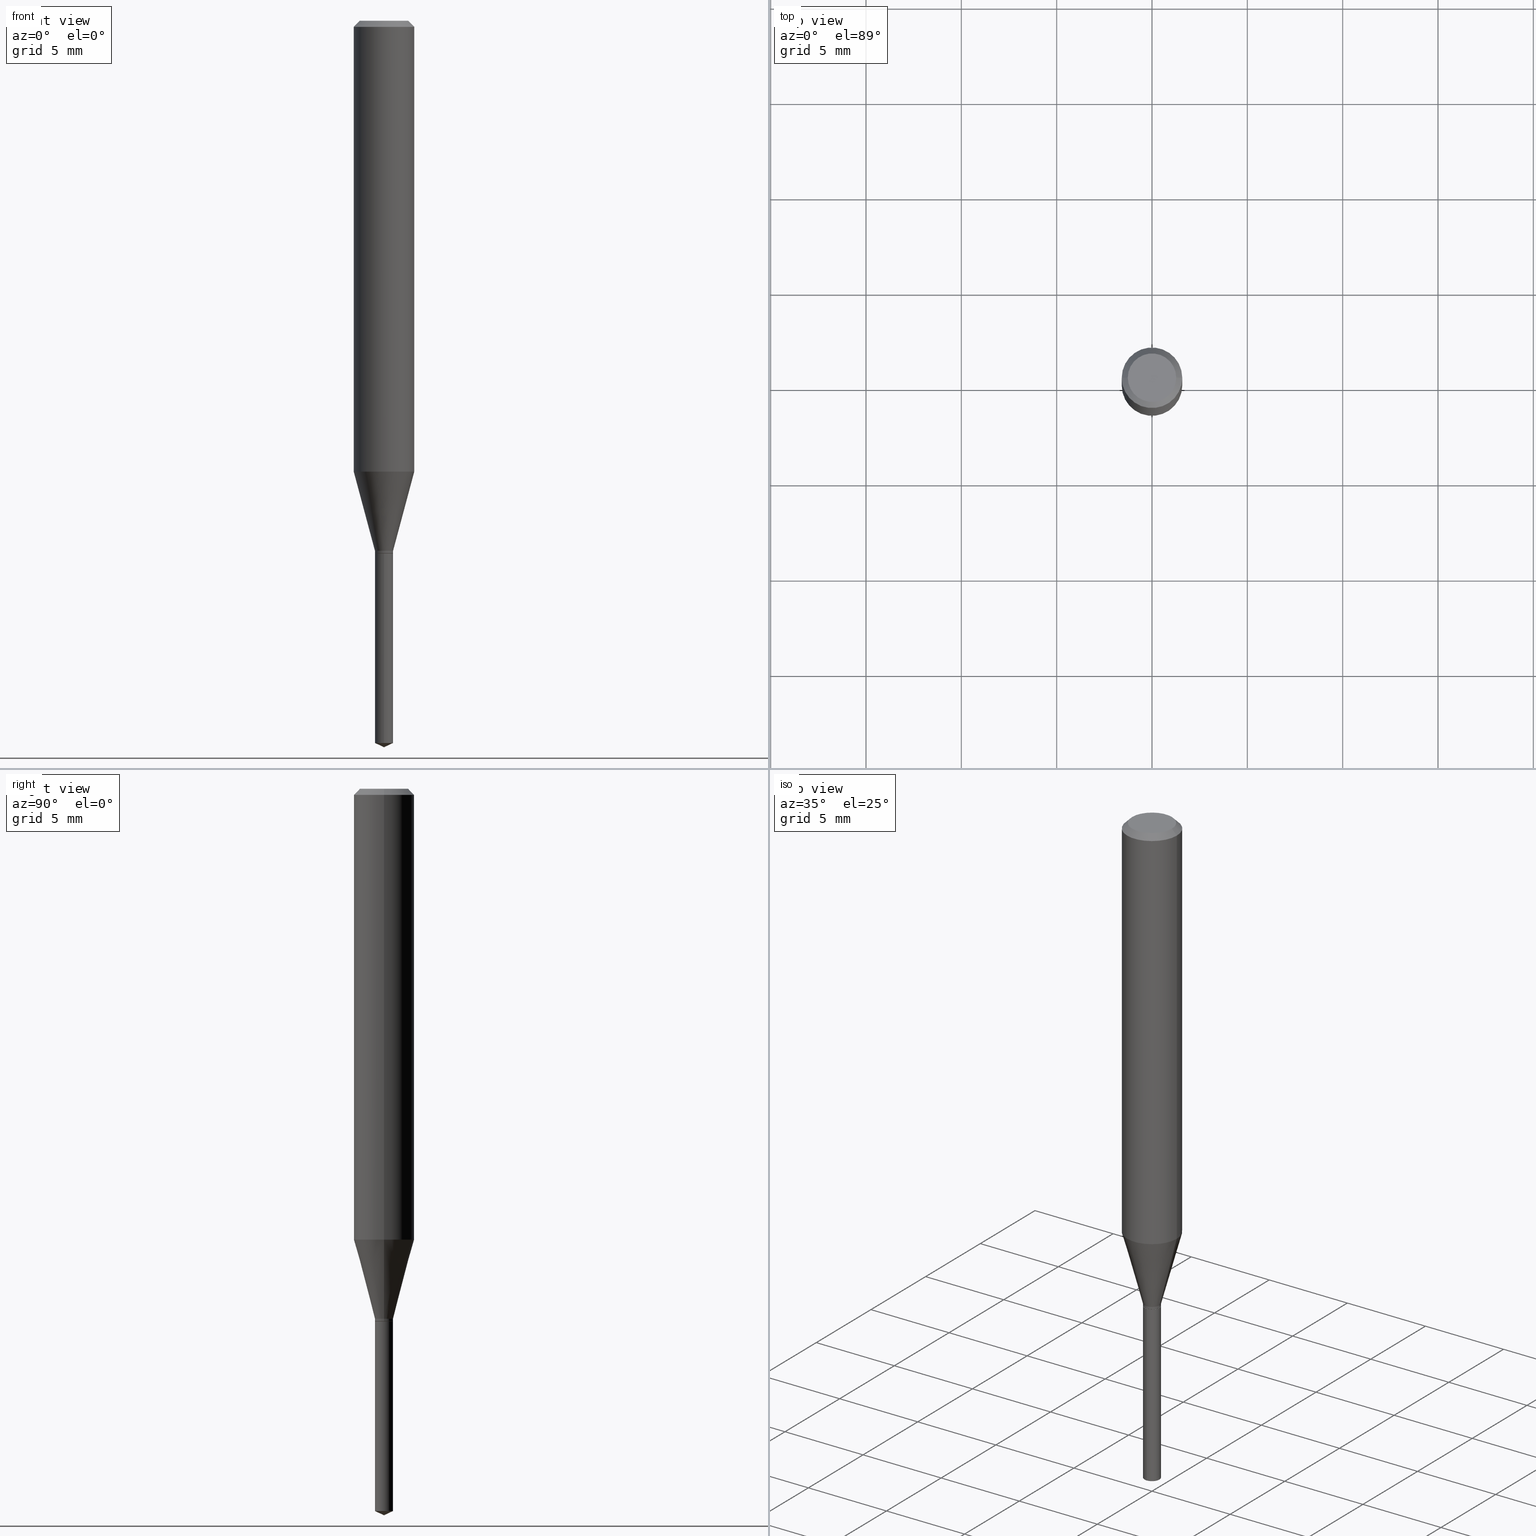
[diagram: canonical four-view strip — front | top / right | iso, engineering-drawing reading convention]
A machine part, canonical four-view strip (front | top / right | iso — engineering-drawing reading convention). The complete STEP part file that produces these views, byte-faithful:
ISO-10303-21;
HEADER;
FILE_DESCRIPTION (( 'STEP AP203' ),
    '1' );
FILE_NAME ('07308.STEP',
    '2024-04-23T20:21:06',
    ( '' ),
    ( '' ),
    'SwSTEP 2.0',
    'SolidWorks 2023',
    '' );
FILE_SCHEMA (( 'CONFIG_CONTROL_DESIGN' ));
ENDSEC;

DATA;
#1 = CLOSED_SHELL ( 'NONE', ( #456, #391, #300, #370, #58, #366, #282, #95, #230, #337, #39, #72 ) ) ;
#2 = CARTESIAN_POINT ( 'NONE',  ( 0.01870000000000000134, -3.951658579302672462E-15, -1.094400000000000039 ) ) ;
#3 = EDGE_CURVE ( 'NONE', #159, #268, #135, .T. ) ;
#4 = EDGE_LOOP ( 'NONE', ( #326, #16, #15, #118 ) ) ;
#5 = CARTESIAN_POINT ( 'NONE',  ( 1.328714915871656395E-16, 0.01869999999999616067, -1.100000000000000089 ) ) ;
#6 = APPROVAL ( #331, 'UNSPECIFIED' ) ;
#7 = DIRECTION ( 'NONE',  ( 1.000000000000000000, -6.982962677686266711E-15, 4.876176775795935232E-29 ) ) ;
#8 = ORIENTED_EDGE ( 'NONE', *, *, #171, .T. ) ;
#9 = LOCAL_TIME ( 16, 21, 6.000000000000000000, #304 ) ;
#10 = CARTESIAN_POINT ( 'NONE',  ( 2.690015686803650369E-29, -3.840629472727460101E-15, -1.100000000000000089 ) ) ;
#11 = PERSON_AND_ORGANIZATION ( #480, #19 ) ;
#12 = DIRECTION ( 'NONE',  ( -2.445468806185136597E-29, 3.491481338843145583E-15, 1.000000000000000000 ) ) ;
#13 = PERSON_AND_ORGANIZATION ( #480, #19 ) ;
#14 = CYLINDRICAL_SURFACE ( 'NONE', #417, 0.06250000000000005551 ) ;
#15 = ORIENTED_EDGE ( 'NONE', *, *, #354, .F. ) ;
#16 = ORIENTED_EDGE ( 'NONE', *, *, #317, .T. ) ;
#17 = DIRECTION ( 'NONE',  ( 0.7071067811865232589, -2.468850131082003836E-15, 0.7071067811865715536 ) ) ;
#18 = AXIS2_PLACEMENT_3D ( 'NONE', #470, #192, #48 ) ;
#19 = ORGANIZATION ( 'UNSPECIFIED', 'UNSPECIFIED', '' ) ;
#20 = LINE ( 'NONE', #129, #184 ) ;
#21 = ORIENTED_EDGE ( 'NONE', *, *, #94, .T. ) ;
#22 = DIRECTION ( 'NONE',  ( 2.438088387897960049E-29, -3.491481338843145188E-15, -1.000000000000000000 ) ) ;
#23 = DESIGN_CONTEXT ( 'detailed design', #46, 'design' ) ;
#24 = ADVANCED_FACE ( 'NONE', ( #26 ), #444, .T. ) ;
#25 = CARTESIAN_POINT ( 'NONE',  ( 0.000000000000000000, 0.000000000000000000, 0.000000000000000000 ) ) ;
#26 = FACE_OUTER_BOUND ( 'NONE', #259, .T. ) ;
#27 =( GEOMETRIC_REPRESENTATION_CONTEXT ( 3 ) GLOBAL_UNCERTAINTY_ASSIGNED_CONTEXT ( ( #154 ) ) GLOBAL_UNIT_ASSIGNED_CONTEXT ( ( #365, #36, #137 ) ) REPRESENTATION_CONTEXT ( 'NONE', 'WORKASPACE' ) );
#28 = LINE ( 'NONE', #357, #459 ) ;
#29 = DIRECTION ( 'NONE',  ( -6.982962677686265922E-15, -1.000000000000000000, 0.000000000000000000 ) ) ;
#30 = FACE_OUTER_BOUND ( 'NONE', #110, .T. ) ;
#31 = ORIENTED_EDGE ( 'NONE', *, *, #302, .F. ) ;
#32 = APPLICATION_PROTOCOL_DEFINITION ( 'international standard', 'config_control_design', 1994, #87 ) ;
#33 = EDGE_CURVE ( 'NONE', #408, #159, #189, .T. ) ;
#34 = AXIS2_PLACEMENT_3D ( 'NONE', #25, #207, #360 ) ;
#35 = AXIS2_PLACEMENT_3D ( 'NONE', #398, #400, #359 ) ;
#36 =( NAMED_UNIT ( * ) PLANE_ANGLE_UNIT ( ) SI_UNIT ( $, .RADIAN. ) );
#37 = PRODUCT_RELATED_PRODUCT_CATEGORY ( 'detail', '', ( #474 ) ) ;
#38 = ORIENTED_EDGE ( 'NONE', *, *, #157, .F. ) ;
#39 = ADVANCED_FACE ( 'NONE', ( #488 ), #225, .F. ) ;
#40 = EDGE_CURVE ( 'NONE', #373, #371, #67, .T. ) ;
#41 = PERSON_AND_ORGANIZATION_ROLE ( 'creator' ) ;
#42 = CIRCLE ( 'NONE', #222, 0.06250000000000009714 ) ;
#43 = CALENDAR_DATE ( 2024, 23, 4 ) ;
#44 = CC_DESIGN_PERSON_AND_ORGANIZATION_ASSIGNMENT ( #152, #425, ( #436 ) ) ;
#45 = CARTESIAN_POINT ( 'NONE',  ( -0.06250000000000000000, 3.927916506198521080E-16, -0.01250000000000008049 ) ) ;
#46 = APPLICATION_CONTEXT ( 'configuration controlled 3d designs of mechanical parts and assemblies' ) ;
#47 = COORDINATED_UNIVERSAL_TIME_OFFSET ( 5, 0, .BEHIND. ) ;
#48 = DIRECTION ( 'NONE',  ( 1.000000000000000000, -6.982962677686266711E-15, 0.000000000000000000 ) ) ;
#49 = CARTESIAN_POINT ( 'NONE',  ( 2.688792952400557567E-29, -3.838883732058038598E-15, -1.099499999999999922 ) ) ;
#50 = DIRECTION ( 'NONE',  ( -2.445468806185136597E-29, 3.491481338843145583E-15, 1.000000000000000000 ) ) ;
#51 = AXIS2_PLACEMENT_3D ( 'NONE', #10, #148, #279 ) ;
#52 = SECURITY_CLASSIFICATION_LEVEL ( 'unclassified' ) ;
#53 = AXIS2_PLACEMENT_3D ( 'NONE', #100, #322, #167 ) ;
#54 = DIRECTION ( 'NONE',  ( 1.000000000000000000, -6.982962677686274599E-15, 0.000000000000000000 ) ) ;
#55 = CALENDAR_DATE ( 2024, 23, 4 ) ;
#56 = DIRECTION ( 'NONE',  ( -2.445468806185136597E-29, 3.491481338843145583E-15, 1.000000000000000000 ) ) ;
#57 = EDGE_LOOP ( 'NONE', ( #175, #90 ) ) ;
#58 = ADVANCED_FACE ( 'NONE', ( #76 ), #335, .T. ) ;
#59 = CARTESIAN_POINT ( 'NONE',  ( 2.676321061489013570E-29, -3.821077177229939261E-15, -1.094400000000000039 ) ) ;
#60 = ORIENTED_EDGE ( 'NONE', *, *, #3, .F. ) ;
#61 = DIRECTION ( 'NONE',  ( 2.445468806185136597E-29, -3.491481338843145583E-15, -1.000000000000000000 ) ) ;
#62 = CARTESIAN_POINT ( 'NONE',  ( 3.668252923656895710E-29, -5.237152723863177100E-15, -1.500000000000000222 ) ) ;
#63 = DIRECTION ( 'NONE',  ( 1.000000000000000000, -6.982962677686265922E-15, 4.875957971899673662E-29 ) ) ;
#64 = CARTESIAN_POINT ( 'NONE',  ( 0.04999999999999999584, -4.077247707424184212E-16, -1.592040838888913461E-18 ) ) ;
#65 = ORIENTED_EDGE ( 'NONE', *, *, #443, .T. ) ;
#66 = CARTESIAN_POINT ( 'NONE',  ( 2.676321061489013570E-29, -3.821077177229939261E-15, -1.094400000000000039 ) ) ;
#67 = CIRCLE ( 'NONE', #404, 0.06250000000000009714 ) ;
#68 = AXIS2_PLACEMENT_3D ( 'NONE', #248, #61, #96 ) ;
#69 = DIRECTION ( 'NONE',  ( -6.982962677686265922E-15, -1.000000000000000000, 0.000000000000000000 ) ) ;
#70 = EDGE_LOOP ( 'NONE', ( #239, #486, #117, #390 ) ) ;
#71 = DIRECTION ( 'NONE',  ( 0.000000000000000000, 0.000000000000000000, 1.000000000000000000 ) ) ;
#72 = ADVANCED_FACE ( 'NONE', ( #305 ), #99, .T. ) ;
#73 = ORIENTED_EDGE ( 'NONE', *, *, #215, .T. ) ;
#74 = APPLICATION_PROTOCOL_DEFINITION ( 'international standard', 'config_control_design', 1994, #46 ) ;
#75 = CIRCLE ( 'NONE', #271, 0.01870000000000000134 ) ;
#76 = FACE_OUTER_BOUND ( 'NONE', #253, .T. ) ;
#77 = AXIS2_PLACEMENT_3D ( 'NONE', #66, #401, #216 ) ;
#78 = ORIENTED_EDGE ( 'NONE', *, *, #146, .F. ) ;
#79 = DIRECTION ( 'NONE',  ( 1.000000000000000000, 0.000000000000000000, 0.000000000000000000 ) ) ;
#80 = DATE_AND_TIME ( #445, #244 ) ;
#81 = CARTESIAN_POINT ( 'NONE',  ( 0.01870000000000000134, -3.951658579302672462E-15, -1.094400000000000039 ) ) ;
#82 = CARTESIAN_POINT ( 'NONE',  ( 2.690015686803650369E-29, -3.840629472727460101E-15, -1.100000000000000089 ) ) ;
#83 = AXIS2_PLACEMENT_3D ( 'NONE', #49, #422, #54 ) ;
#84 = PRODUCT_DEFINITION_FORMATION_WITH_SPECIFIED_SOURCE ( 'ANY', '', #474, .NOT_KNOWN. ) ;
#85 = CARTESIAN_POINT ( 'NONE',  ( -9.260740279983036507E-28, 1.322265303911854087E-13, 37.87007874015748143 ) ) ;
#86 = VERTEX_POINT ( 'NONE', #81 ) ;
#87 = APPLICATION_CONTEXT ( 'configuration controlled 3d designs of mechanical parts and assemblies' ) ;
#88 = LINE ( 'NONE', #121, #388 ) ;
#89 = CARTESIAN_POINT ( 'NONE',  ( -0.01870000000000000134, -3.688205685642800172E-15, -1.094400000000000039 ) ) ;
#90 = ORIENTED_EDGE ( 'NONE', *, *, #115, .F. ) ;
#91 = CIRCLE ( 'NONE', #328, 0.04999999999999999584 ) ;
#92 = CC_DESIGN_APPROVAL ( #6, ( #469 ) ) ;
#93 = LINE ( 'NONE', #89, #208 ) ;
#94 = EDGE_CURVE ( 'NONE', #281, #384, #114, .T. ) ;
#95 = ADVANCED_FACE ( 'NONE', ( #126 ), #14, .T. ) ;
#96 = DIRECTION ( 'NONE',  ( -1.000000000000000000, 6.982962677686266711E-15, 0.000000000000000000 ) ) ;
#97 = APPROVAL ( #237, 'UNSPECIFIED' ) ;
#98 = FACE_OUTER_BOUND ( 'NONE', #394, .T. ) ;
#99 = CONICAL_SURFACE ( 'NONE', #367, 0.01820000000000000090, 0.7853981633974141952 ) ;
#100 = CARTESIAN_POINT ( 'NONE',  ( 2.676321061489013570E-29, -3.821077177229939261E-15, -1.094400000000000039 ) ) ;
#101 = EDGE_LOOP ( 'NONE', ( #261, #185, #451, #421 ) ) ;
#102 = DIRECTION ( 'NONE',  ( -2.445468806185136597E-29, 3.491481338843145583E-15, 1.000000000000000000 ) ) ;
#103 = ORIENTED_EDGE ( 'NONE', *, *, #229, .F. ) ;
#104 = LINE ( 'NONE', #280, #389 ) ;
#105 = DIRECTION ( 'NONE',  ( -2.445468806185136597E-29, 3.491481338843145583E-15, 1.000000000000000000 ) ) ;
#106 = ADVANCED_FACE ( 'NONE', ( #195 ), #160, .F. ) ;
#107 = CONICAL_SURFACE ( 'NONE', #435, 0.06250000000000000000, 0.7853981633974452814 ) ;
#108 = APPROVAL_PERSON_ORGANIZATION ( #156, #119, #313 ) ;
#109 = PERSON_AND_ORGANIZATION ( #480, #19 ) ;
#110 = EDGE_LOOP ( 'NONE', ( #197, #454, #172, #181 ) ) ;
#111 = DIRECTION ( 'NONE',  ( -6.982962677686265922E-15, -1.000000000000000000, 0.000000000000000000 ) ) ;
#112 = CARTESIAN_POINT ( 'NONE',  ( -9.260740279983036507E-28, 1.322265303911854087E-13, 37.87007874015748143 ) ) ;
#113 = DIRECTION ( 'NONE',  ( -2.445468806185136597E-29, 3.491481338843145583E-15, 1.000000000000000000 ) ) ;
#114 = CIRCLE ( 'NONE', #150, 0.04999999999999999584 ) ;
#115 = EDGE_CURVE ( 'NONE', #149, #269, #301, .T. ) ;
#116 = DIRECTION ( 'NONE',  ( -6.982962677686265922E-15, -1.000000000000000000, 0.000000000000000000 ) ) ;
#117 = ORIENTED_EDGE ( 'NONE', *, *, #415, .T. ) ;
#118 = ORIENTED_EDGE ( 'NONE', *, *, #318, .F. ) ;
#119 = APPROVAL ( #190, 'UNSPECIFIED' ) ;
#120 = CARTESIAN_POINT ( 'NONE',  ( 3.893286209682126177E-47, -5.558580879666067980E-33, -1.592040838891559689E-18 ) ) ;
#121 = CARTESIAN_POINT ( 'NONE',  ( 0.06250000000000000000, -4.724246415962602840E-16, -0.01250000000000008049 ) ) ;
#122 = ADVANCED_FACE ( 'NONE', ( #341 ), #340, .T. ) ;
#123 = DIRECTION ( 'NONE',  ( -2.445399690415121530E-29, 3.491580316559632610E-15, 1.000000000000000000 ) ) ;
#124 = CC_DESIGN_PERSON_AND_ORGANIZATION_ASSIGNMENT ( #182, #453, ( #474 ) ) ;
#125 = FACE_OUTER_BOUND ( 'NONE', #489, .T. ) ;
#126 = FACE_OUTER_BOUND ( 'NONE', #463, .T. ) ;
#127 = FACE_OUTER_BOUND ( 'NONE', #485, .T. ) ;
#128 = CIRCLE ( 'NONE', #83, 0.01870000000000000134 ) ;
#129 = CARTESIAN_POINT ( 'NONE',  ( -0.01820000000000000090, -3.711310694819121911E-15, -1.100000000000000089 ) ) ;
#130 = CONICAL_SURFACE ( 'NONE', #77, 0.01870000000000000134, 0.2617993877991498519 ) ;
#131 = DIRECTION ( 'NONE',  ( 6.439704144417065852E-15, 0.9063077870366571531, 0.4226182617406837316 ) ) ;
#132 = CYLINDRICAL_SURFACE ( 'NONE', #34, 0.06250000000000005551 ) ;
#133 = EDGE_CURVE ( 'NONE', #281, #338, #232, .T. ) ;
#134 = DIRECTION ( 'NONE',  ( 0.2588190451025211281, 1.565188264969622954E-15, 0.9659258262890679791 ) ) ;
#135 = CIRCLE ( 'NONE', #290, 0.01870000000000000134 ) ;
#136 = ORIENTED_EDGE ( 'NONE', *, *, #165, .F. ) ;
#137 =( NAMED_UNIT ( * ) SI_UNIT ( $, .STERADIAN. ) SOLID_ANGLE_UNIT ( ) );
#138 = DIRECTION ( 'NONE',  ( -2.445399690415121530E-29, 3.491580316559632610E-15, 1.000000000000000000 ) ) ;
#139 = VERTEX_POINT ( 'NONE', #275 ) ;
#140 = CARTESIAN_POINT ( 'NONE',  ( 0.000000000000000000, 0.000000000000000000, 0.000000000000000000 ) ) ;
#141 = CIRCLE ( 'NONE', #427, 0.06250000000000000000 ) ;
#142 = APPROVAL_PERSON_ORGANIZATION ( #455, #97, #186 ) ;
#143 = ORIENTED_EDGE ( 'NONE', *, *, #174, .T. ) ;
#144 = DIRECTION ( 'NONE',  ( 1.000000000000000000, -6.982962677686265922E-15, 4.875957971899673662E-29 ) ) ;
#145 = DIRECTION ( 'NONE',  ( -6.328713451373408822E-15, -0.9063077870366542665, 0.4226182617406900044 ) ) ;
#146 = EDGE_CURVE ( 'NONE', #361, #338, #460, .T. ) ;
#147 = APPROVAL_DATE_TIME ( #267, #119 ) ;
#148 = DIRECTION ( 'NONE',  ( 2.445399690415121250E-29, -3.491580316559632610E-15, -1.000000000000000000 ) ) ;
#149 = VERTEX_POINT ( 'NONE', #245 ) ;
#150 = AXIS2_PLACEMENT_3D ( 'NONE', #386, #50, #63 ) ;
#151 = CIRCLE ( 'NONE', #472, 0.01870000000000000134 ) ;
#152 = PERSON_AND_ORGANIZATION ( #480, #19 ) ;
#153 = DIRECTION ( 'NONE',  ( 1.000000000000000000, -6.982962677686273810E-15, 0.000000000000000000 ) ) ;
#154 = UNCERTAINTY_MEASURE_WITH_UNIT (LENGTH_MEASURE( 1.000000000000000082E-05 ), #365, 'distance_accuracy_value', 'NONE');
#155 = ORIENTED_EDGE ( 'NONE', *, *, #415, .F. ) ;
#156 = PERSON_AND_ORGANIZATION ( #480, #19 ) ;
#157 = EDGE_CURVE ( 'NONE', #342, #395, #75, .T. ) ;
#158 = CARTESIAN_POINT ( 'NONE',  ( 3.646851792095648765E-29, -5.206815182370692435E-15, -1.491280046792502034 ) ) ;
#159 = VERTEX_POINT ( 'NONE', #308 ) ;
#160 = PLANE ( 'NONE',  #51 ) ;
#161 = ORIENTED_EDGE ( 'NONE', *, *, #441, .T. ) ;
#162 = AXIS2_PLACEMENT_3D ( 'NONE', #258, #138, #69 ) ;
#163 = PLANE ( 'NONE',  #278 ) ;
#164 = LINE ( 'NONE', #2, #320 ) ;
#165 = EDGE_CURVE ( 'NONE', #384, #281, #91, .T. ) ;
#166 = CARTESIAN_POINT ( 'NONE',  ( 0.01820000000000000090, -3.967719393461350294E-15, -1.100000000000000089 ) ) ;
#167 = DIRECTION ( 'NONE',  ( 1.000000000000000000, -6.982962677686274599E-15, 0.000000000000000000 ) ) ;
#168 = AXIS2_PLACEMENT_3D ( 'NONE', #413, #339, #291 ) ;
#169 = EDGE_CURVE ( 'NONE', #336, #371, #93, .T. ) ;
#170 = LINE ( 'NONE', #62, #177 ) ;
#171 = EDGE_CURVE ( 'NONE', #373, #361, #387, .T. ) ;
#172 = ORIENTED_EDGE ( 'NONE', *, *, #351, .T. ) ;
#173 = CARTESIAN_POINT ( 'NONE',  ( 2.690015686803650369E-29, -3.840629472727460101E-15, -1.100000000000000089 ) ) ;
#174 = EDGE_CURVE ( 'NONE', #268, #395, #346, .T. ) ;
#175 = ORIENTED_EDGE ( 'NONE', *, *, #200, .F. ) ;
#176 = CARTESIAN_POINT ( 'NONE',  ( -0.01870000000000000134, 1.328714915871387443E-16, -9.198408618776675202E-31 ) ) ;
#177 = VECTOR ( 'NONE', #131, 39.37007874015748143 ) ;
#178 = AXIS2_PLACEMENT_3D ( 'NONE', #59, #214, #324 ) ;
#179 = LINE ( 'NONE', #176, #411 ) ;
#180 = DIRECTION ( 'NONE',  ( 1.000000000000000000, -6.982962677686266711E-15, 4.876176775795935793E-29 ) ) ;
#181 = ORIENTED_EDGE ( 'NONE', *, *, #465, .F. ) ;
#182 = PERSON_AND_ORGANIZATION ( #480, #19 ) ;
#183 = CALENDAR_DATE ( 2024, 23, 4 ) ;
#184 = VECTOR ( 'NONE', #247, 39.37007874015748854 ) ;
#185 = ORIENTED_EDGE ( 'NONE', *, *, #94, .F. ) ;
#186 = APPROVAL_ROLE ( '' ) ;
#187 = DIRECTION ( 'NONE',  ( 1.000000000000000000, -6.982962677686266711E-15, 0.000000000000000000 ) ) ;
#188 = EDGE_CURVE ( 'NONE', #268, #159, #484, .T. ) ;
#189 = LINE ( 'NONE', #343, #477 ) ;
#190 = APPROVAL_STATUS ( 'not_yet_approved' ) ;
#191 = MANIFOLD_SOLID_BREP ( 'Body-Move/Copy2[1]', #284 ) ;
#192 = DIRECTION ( 'NONE',  ( -2.445468806185136597E-29, 3.491481338843145583E-15, 1.000000000000000000 ) ) ;
#193 = ORIENTED_EDGE ( 'NONE', *, *, #33, .T. ) ;
#194 = APPROVAL_DATE_TIME ( #416, #97 ) ;
#195 = FACE_OUTER_BOUND ( 'NONE', #420, .T. ) ;
#196 = ORIENTED_EDGE ( 'NONE', *, *, #165, .T. ) ;
#197 = ORIENTED_EDGE ( 'NONE', *, *, #174, .F. ) ;
#198 = AXIS2_PLACEMENT_3D ( 'NONE', #173, #482, #111 ) ;
#199 = VECTOR ( 'NONE', #447, 39.37007874015748143 ) ;
#200 = EDGE_CURVE ( 'NONE', #269, #149, #362, .T. ) ;
#201 = DATE_AND_TIME ( #376, #224 ) ;
#202 = DIRECTION ( 'NONE',  ( 2.445468806185136597E-29, -3.491481338843145583E-15, -1.000000000000000000 ) ) ;
#203 = ORIENTED_EDGE ( 'NONE', *, *, #157, .T. ) ;
#204 = CC_DESIGN_PERSON_AND_ORGANIZATION_ASSIGNMENT ( #375, #41, ( #469 ) ) ;
#205 = CARTESIAN_POINT ( 'NONE',  ( 0.06250000000000005551, -4.364351673553920638E-16, 3.047610484872462323E-30 ) ) ;
#206 = ORIENTED_EDGE ( 'NONE', *, *, #255, .F. ) ;
#207 = DIRECTION ( 'NONE',  ( -2.445468806185136597E-29, 3.491481338843145583E-15, 1.000000000000000000 ) ) ;
#208 = VECTOR ( 'NONE', #461, 39.37007874015748854 ) ;
#209 = CARTESIAN_POINT ( 'NONE',  ( 1.328714915871752538E-16, 0.01869999999999615720, -1.100000000000000089 ) ) ;
#210 = EDGE_CURVE ( 'NONE', #384, #361, #88, .T. ) ;
#211 = ORIENTED_EDGE ( 'NONE', *, *, #146, .T. ) ;
#212 = CARTESIAN_POINT ( 'NONE',  ( 2.688792952400557567E-29, -3.838883732058038598E-15, -1.099499999999999922 ) ) ;
#213 = CC_DESIGN_DATE_AND_TIME_ASSIGNMENT ( #349, #392, ( #469 ) ) ;
#214 = DIRECTION ( 'NONE',  ( -2.445468806185136597E-29, 3.491481338843145583E-15, 1.000000000000000000 ) ) ;
#215 = EDGE_CURVE ( 'NONE', #371, #373, #42, .T. ) ;
#216 = DIRECTION ( 'NONE',  ( 1.000000000000000000, -6.982962677686274599E-15, 0.000000000000000000 ) ) ;
#217 = CONICAL_SURFACE ( 'NONE', #68, 0.06250000000000000000, 0.7853981633974452814 ) ;
#218 = CARTESIAN_POINT ( 'NONE',  ( 2.676321061489013570E-29, -3.821077177229939261E-15, -1.094400000000000039 ) ) ;
#219 = CARTESIAN_POINT ( 'NONE',  ( 2.690015686803650369E-29, -3.840629472727460101E-15, -1.100000000000000089 ) ) ;
#220 = ORIENTED_EDGE ( 'NONE', *, *, #133, .F. ) ;
#221 = COORDINATED_UNIVERSAL_TIME_OFFSET ( 5, 0, .BEHIND. ) ;
#222 = AXIS2_PLACEMENT_3D ( 'NONE', #383, #12, #238 ) ;
#223 = DIRECTION ( 'NONE',  ( -2.445468806185136597E-29, 3.491481338843145583E-15, 1.000000000000000000 ) ) ;
#224 = LOCAL_TIME ( 16, 21, 6.000000000000000000, #47 ) ;
#225 = PLANE ( 'NONE',  #243 ) ;
#226 = ORIENTED_EDGE ( 'NONE', *, *, #345, .F. ) ;
#227 = CARTESIAN_POINT ( 'NONE',  ( 2.276575375603274557E-29, -3.250346281369372533E-15, -0.9309361746284832151 ) ) ;
#228 = APPROVAL_DATE_TIME ( #80, #6 ) ;
#229 = EDGE_CURVE ( 'NONE', #139, #353, #128, .T. ) ;
#230 = ADVANCED_FACE ( 'NONE', ( #314 ), #107, .T. ) ;
#231 = COORDINATED_UNIVERSAL_TIME_OFFSET ( 5, 0, .BEHIND. ) ;
#232 = LINE ( 'NONE', #45, #233 ) ;
#233 = VECTOR ( 'NONE', #276, 39.37007874015748143 ) ;
#234 = AXIS2_PLACEMENT_3D ( 'NONE', #140, #71, #79 ) ;
#235 = DIRECTION ( 'NONE',  ( -2.445399690415121530E-29, 3.491580316559632610E-15, 1.000000000000000000 ) ) ;
#236 = ORIENTED_EDGE ( 'NONE', *, *, #229, .T. ) ;
#237 = APPROVAL_STATUS ( 'not_yet_approved' ) ;
#238 = DIRECTION ( 'NONE',  ( 1.000000000000000000, -6.982962677686267499E-15, 0.000000000000000000 ) ) ;
#239 = ORIENTED_EDGE ( 'NONE', *, *, #169, .F. ) ;
#240 = DIRECTION ( 'NONE',  ( 1.000000000000000000, -6.982962677686273810E-15, 0.000000000000000000 ) ) ;
#241 = CARTESIAN_POINT ( 'NONE',  ( 2.690015686803650369E-29, -3.840629472727460101E-15, -1.100000000000000089 ) ) ;
#242 = CC_DESIGN_PERSON_AND_ORGANIZATION_ASSIGNMENT ( #11, #382, ( #84 ) ) ;
#243 = AXIS2_PLACEMENT_3D ( 'NONE', #307, #449, #297 ) ;
#244 = LOCAL_TIME ( 16, 21, 6.000000000000000000, #369 ) ;
#245 = CARTESIAN_POINT ( 'NONE',  ( -0.01820000000000000090, -3.708661467645010709E-15, -1.100000000000000089 ) ) ;
#246 = ORIENTED_EDGE ( 'NONE', *, *, #351, .F. ) ;
#247 = DIRECTION ( 'NONE',  ( -0.7071067811865232589, 7.493145998870265808E-15, 0.7071067811865715536 ) ) ;
#248 = CARTESIAN_POINT ( 'NONE',  ( 3.056836007731440539E-31, -4.364351673553960451E-17, -0.01250000000000008049 ) ) ;
#249 = AXIS2_PLACEMENT_3D ( 'NONE', #316, #56, #153 ) ;
#250 = VECTOR ( 'NONE', #17, 39.37007874015748854 ) ;
#251 = FACE_OUTER_BOUND ( 'NONE', #402, .T. ) ;
#252 = FACE_OUTER_BOUND ( 'NONE', #295, .T. ) ;
#253 = EDGE_LOOP ( 'NONE', ( #272, #325, #311, #31 ) ) ;
#254 = ORIENTED_EDGE ( 'NONE', *, *, #40, .F. ) ;
#255 = EDGE_CURVE ( 'NONE', #338, #361, #141, .T. ) ;
#256 = DIRECTION ( 'NONE',  ( 1.000000000000000000, -6.982962677686274599E-15, 0.000000000000000000 ) ) ;
#257 = AXIS2_PLACEMENT_3D ( 'NONE', #241, #381, #356 ) ;
#258 = CARTESIAN_POINT ( 'NONE',  ( 2.690015686803650369E-29, -3.840629472727460101E-15, -1.100000000000000089 ) ) ;
#259 = EDGE_LOOP ( 'NONE', ( #303, #143, #38, #246 ) ) ;
#260 = DIRECTION ( 'NONE',  ( -2.445468806185136877E-29, 3.491481338843145188E-15, 1.000000000000000000 ) ) ;
#261 = ORIENTED_EDGE ( 'NONE', *, *, #210, .F. ) ;
#262 = CARTESIAN_POINT ( 'NONE',  ( 0.000000000000000000, 0.000000000000000000, 0.000000000000000000 ) ) ;
#263 = ORIENTED_EDGE ( 'NONE', *, *, #287, .T. ) ;
#264 = AXIS2_PLACEMENT_3D ( 'NONE', #262, #223, #180 ) ;
#265 = APPROVAL_ROLE ( '' ) ;
#266 = ADVANCED_FACE ( 'NONE', ( #457 ), #399, .T. ) ;
#267 = DATE_AND_TIME ( #55, #9 ) ;
#268 = VERTEX_POINT ( 'NONE', #396 ) ;
#269 = VERTEX_POINT ( 'NONE', #283 ) ;
#270 = DIRECTION ( 'NONE',  ( 0.7071067811865453523, -7.319954787623248157E-15, -0.7071067811865496822 ) ) ;
#271 = AXIS2_PLACEMENT_3D ( 'NONE', #393, #235, #419 ) ;
#272 = ORIENTED_EDGE ( 'NONE', *, *, #354, .T. ) ;
#273 = DATE_TIME_ROLE ( 'classification_date' ) ;
#274 = DIRECTION ( 'NONE',  ( -2.445468806185136877E-29, 3.491481338843145188E-15, 1.000000000000000000 ) ) ;
#275 = CARTESIAN_POINT ( 'NONE',  ( -0.01870000000000000134, -3.697108963056850235E-15, -1.099499999999999922 ) ) ;
#276 = DIRECTION ( 'NONE',  ( -0.7071067811865453523, 2.468850131082234184E-15, -0.7071067811865496822 ) ) ;
#277 = VECTOR ( 'NONE', #274, 39.37007874015748143 ) ;
#278 = AXIS2_PLACEMENT_3D ( 'NONE', #440, #22, #289 ) ;
#279 = DIRECTION ( 'NONE',  ( 6.982962677686265922E-15, 1.000000000000000000, -3.491580316559632610E-15 ) ) ;
#280 = CARTESIAN_POINT ( 'NONE',  ( -1.305814020727062802E-16, -0.01870000000000384202, -1.100000000000000089 ) ) ;
#281 = VERTEX_POINT ( 'NONE', #475 ) ;
#282 = ADVANCED_FACE ( 'NONE', ( #479 ), #333, .T. ) ;
#283 = CARTESIAN_POINT ( 'NONE',  ( 0.01820000000000000090, -3.967719393461350294E-15, -1.100000000000000089 ) ) ;
#284 = CLOSED_SHELL ( 'NONE', ( #24, #122, #266, #423, #106 ) ) ;
#285 = CC_DESIGN_APPROVAL ( #119, ( #436 ) ) ;
#286 = DIRECTION ( 'NONE',  ( -2.445399690415121810E-29, 3.491580316559632610E-15, 1.000000000000000000 ) ) ;
#287 = EDGE_CURVE ( 'NONE', #408, #268, #170, .T. ) ;
#288 = LINE ( 'NONE', #166, #250 ) ;
#289 = DIRECTION ( 'NONE',  ( -1.000000000000000000, 6.982962677686265922E-15, -4.876176775795935793E-29 ) ) ;
#290 = AXIS2_PLACEMENT_3D ( 'NONE', #442, #439, #29 ) ;
#291 = DIRECTION ( 'NONE',  ( -6.982962677686265922E-15, -1.000000000000000000, 0.000000000000000000 ) ) ;
#292 = APPROVAL_PERSON_ORGANIZATION ( #109, #6, #265 ) ;
#293 = ORIENTED_EDGE ( 'NONE', *, *, #465, .T. ) ;
#294 = LINE ( 'NONE', #334, #199 ) ;
#295 = EDGE_LOOP ( 'NONE', ( #161, #327, #254, #155 ) ) ;
#296 = FACE_OUTER_BOUND ( 'NONE', #4, .T. ) ;
#297 = DIRECTION ( 'NONE',  ( 1.000000000000000000, -6.982962677686265922E-15, 4.876176775795935793E-29 ) ) ;
#298 = ORIENTED_EDGE ( 'NONE', *, *, #318, .T. ) ;
#299 = MECHANICAL_CONTEXT ( 'NONE', #87, 'mechanical' ) ;
#300 = ADVANCED_FACE ( 'NONE', ( #127 ), #132, .T. ) ;
#301 = CIRCLE ( 'NONE', #249, 0.01820000000000000090 ) ;
#302 = EDGE_CURVE ( 'NONE', #353, #86, #28, .T. ) ;
#303 = ORIENTED_EDGE ( 'NONE', *, *, #3, .T. ) ;
#304 = COORDINATED_UNIVERSAL_TIME_OFFSET ( 5, 0, .BEHIND. ) ;
#305 = FACE_OUTER_BOUND ( 'NONE', #464, .T. ) ;
#306 = DIRECTION ( 'NONE',  ( -2.445399690415121810E-29, 3.491580316559632610E-15, 1.000000000000000000 ) ) ;
#307 = CARTESIAN_POINT ( 'NONE',  ( 2.690015686803650369E-29, -3.840629472727460101E-15, -1.100000000000000089 ) ) ;
#308 = CARTESIAN_POINT ( 'NONE',  ( -1.305814020726966906E-16, -0.01870000000000520898, -1.491280046792502034 ) ) ;
#309 = AXIS2_PLACEMENT_3D ( 'NONE', #218, #448, #372 ) ;
#310 = ORIENTED_EDGE ( 'NONE', *, *, #115, .T. ) ;
#311 = ORIENTED_EDGE ( 'NONE', *, *, #441, .F. ) ;
#312 = DIRECTION ( 'NONE',  ( -2.445468806185136597E-29, 3.491481338843145583E-15, 1.000000000000000000 ) ) ;
#313 = APPROVAL_ROLE ( '' ) ;
#314 = FACE_OUTER_BOUND ( 'NONE', #101, .T. ) ;
#315 = EDGE_LOOP ( 'NONE', ( #458, #263, #60 ) ) ;
#316 = CARTESIAN_POINT ( 'NONE',  ( 2.690015686803650369E-29, -3.840629472727460101E-15, -1.100000000000000089 ) ) ;
#317 = EDGE_CURVE ( 'NONE', #149, #139, #20, .T. ) ;
#318 = EDGE_CURVE ( 'NONE', #269, #353, #288, .T. ) ;
#319 = VECTOR ( 'NONE', #306, 39.37007874015748143 ) ;
#320 = VECTOR ( 'NONE', #134, 39.37007874015748854 ) ;
#321 = ADVANCED_BREP_SHAPE_REPRESENTATION ( '07308', ( #191, #355, #234 ), #27 ) ;
#322 = DIRECTION ( 'NONE',  ( -2.445468806185136597E-29, 3.491481338843145583E-15, 1.000000000000000000 ) ) ;
#323 = DIRECTION ( 'NONE',  ( -6.982962677686268288E-15, -1.000000000000000000, 3.520397390770342641E-15 ) ) ;
#324 = DIRECTION ( 'NONE',  ( 1.000000000000000000, -6.982962677686274599E-15, 0.000000000000000000 ) ) ;
#325 = ORIENTED_EDGE ( 'NONE', *, *, #433, .T. ) ;
#326 = ORIENTED_EDGE ( 'NONE', *, *, #200, .T. ) ;
#327 = ORIENTED_EDGE ( 'NONE', *, *, #169, .T. ) ;
#328 = AXIS2_PLACEMENT_3D ( 'NONE', #120, #312, #144 ) ;
#329 = DIRECTION ( 'NONE',  ( -2.445399690415121530E-29, 3.491580316559632610E-15, 1.000000000000000000 ) ) ;
#330 = CARTESIAN_POINT ( 'NONE',  ( 0.06250000000000009714, -3.686781448724765386E-15, -0.9309361746284832151 ) ) ;
#331 = APPROVAL_STATUS ( 'not_yet_approved' ) ;
#332 = ORIENTED_EDGE ( 'NONE', *, *, #188, .F. ) ;
#333 = CONICAL_SURFACE ( 'NONE', #178, 0.01870000000000000134, 0.2617993877991498519 ) ;
#334 = CARTESIAN_POINT ( 'NONE',  ( -0.06250000000000005551, 4.440892098500630106E-16, -3.074334431409318916E-30 ) ) ;
#335 = CYLINDRICAL_SURFACE ( 'NONE', #264, 0.01870000000000000134 ) ;
#336 = VERTEX_POINT ( 'NONE', #481 ) ;
#337 = ADVANCED_FACE ( 'NONE', ( #125 ), #163, .F. ) ;
#338 = VERTEX_POINT ( 'NONE', #434 ) ;
#339 = DIRECTION ( 'NONE',  ( -2.445399690415121530E-29, 3.491580316559632610E-15, 1.000000000000000000 ) ) ;
#340 = CONICAL_SURFACE ( 'NONE', #471, 84.42940631927700679, 1.134464013796327997 ) ;
#341 = FACE_OUTER_BOUND ( 'NONE', #315, .T. ) ;
#342 = VERTEX_POINT ( 'NONE', #437 ) ;
#343 = CARTESIAN_POINT ( 'NONE',  ( 3.668099535622682155E-29, -5.237370474839448718E-15, -1.500000000000000222 ) ) ;
#344 = DIRECTION ( 'NONE',  ( -2.445468806185136597E-29, 3.491481338843145583E-15, 1.000000000000000000 ) ) ;
#345 = EDGE_CURVE ( 'NONE', #336, #86, #428, .T. ) ;
#346 = LINE ( 'NONE', #5, #319 ) ;
#347 = AXIS2_PLACEMENT_3D ( 'NONE', #158, #123, #116 ) ;
#348 = CC_DESIGN_SECURITY_CLASSIFICATION ( #436, ( #84 ) ) ;
#349 = DATE_AND_TIME ( #183, #363 ) ;
#350 = DIRECTION ( 'NONE',  ( -1.000000000000000000, 6.982962677686266711E-15, 0.000000000000000000 ) ) ;
#351 = EDGE_CURVE ( 'NONE', #159, #342, #104, .T. ) ;
#352 = PERSON_AND_ORGANIZATION_ROLE ( 'creator' ) ;
#353 = VERTEX_POINT ( 'NONE', #473 ) ;
#354 = EDGE_CURVE ( 'NONE', #353, #139, #151, .T. ) ;
#355 = MANIFOLD_SOLID_BREP ( 'Body-Move/Copy2[2]', #1 ) ;
#356 = DIRECTION ( 'NONE',  ( 1.000000000000000000, -6.982962677686273810E-15, 0.000000000000000000 ) ) ;
#357 = CARTESIAN_POINT ( 'NONE',  ( 0.01870000000000000134, -1.305814020727332001E-16, 9.118450570738400409E-31 ) ) ;
#358 = CARTESIAN_POINT ( 'NONE',  ( 3.668099535622682715E-29, -5.237370474839449507E-15, -1.500000000000000222 ) ) ;
#359 = DIRECTION ( 'NONE',  ( 1.000000000000000000, -6.982962677686266711E-15, 4.876176775795935793E-29 ) ) ;
#360 = DIRECTION ( 'NONE',  ( 1.000000000000000000, -6.982962677686266711E-15, 4.876176775795935232E-29 ) ) ;
#361 = VERTEX_POINT ( 'NONE', #403 ) ;
#362 = CIRCLE ( 'NONE', #257, 0.01820000000000000090 ) ;
#363 = LOCAL_TIME ( 16, 21, 6.000000000000000000, #221 ) ;
#364 = CARTESIAN_POINT ( 'NONE',  ( -0.06250000000000009714, -2.806257071519309917E-15, -0.9309361746284832151 ) ) ;
#365 =( CONVERSION_BASED_UNIT ( 'INCH', #490 ) LENGTH_UNIT ( ) NAMED_UNIT ( #406 ) );
#366 = ADVANCED_FACE ( 'NONE', ( #251 ), #431, .T. ) ;
#367 = AXIS2_PLACEMENT_3D ( 'NONE', #82, #380, #240 ) ;
#368 = LOCAL_TIME ( 16, 21, 6.000000000000000000, #231 ) ;
#369 = COORDINATED_UNIVERSAL_TIME_OFFSET ( 5, 0, .BEHIND. ) ;
#370 = ADVANCED_FACE ( 'NONE', ( #252 ), #130, .T. ) ;
#371 = VERTEX_POINT ( 'NONE', #364 ) ;
#372 = DIRECTION ( 'NONE',  ( 1.000000000000000000, -6.982962677686274599E-15, 0.000000000000000000 ) ) ;
#373 = VERTEX_POINT ( 'NONE', #330 ) ;
#374 = CC_DESIGN_DATE_AND_TIME_ASSIGNMENT ( #201, #273, ( #436 ) ) ;
#375 = PERSON_AND_ORGANIZATION ( #480, #19 ) ;
#376 = CALENDAR_DATE ( 2024, 23, 4 ) ;
#377 = AXIS2_PLACEMENT_3D ( 'NONE', #112, #329, #323 ) ;
#378 = CARTESIAN_POINT ( 'NONE',  ( 3.056836007731440539E-31, -4.364351673553960451E-17, -0.01250000000000008049 ) ) ;
#379 = CIRCLE ( 'NONE', #162, 0.01870000000000000134 ) ;
#380 = DIRECTION ( 'NONE',  ( -2.445468806185136597E-29, 3.491481338843145583E-15, 1.000000000000000000 ) ) ;
#381 = DIRECTION ( 'NONE',  ( -2.445468806185136597E-29, 3.491481338843145583E-15, 1.000000000000000000 ) ) ;
#382 = PERSON_AND_ORGANIZATION_ROLE ( 'design_supplier' ) ;
#383 = CARTESIAN_POINT ( 'NONE',  ( 2.276575375603274557E-29, -3.250346281369372533E-15, -0.9309361746284832151 ) ) ;
#384 = VERTEX_POINT ( 'NONE', #64 ) ;
#385 = ORIENTED_EDGE ( 'NONE', *, *, #317, .F. ) ;
#386 = CARTESIAN_POINT ( 'NONE',  ( 3.893286209682126177E-47, -5.558580879666067980E-33, -1.592040838891559689E-18 ) ) ;
#387 = LINE ( 'NONE', #205, #277 ) ;
#388 = VECTOR ( 'NONE', #270, 39.37007874015748143 ) ;
#389 = VECTOR ( 'NONE', #286, 39.37007874015748143 ) ;
#390 = ORIENTED_EDGE ( 'NONE', *, *, #215, .F. ) ;
#391 = ADVANCED_FACE ( 'NONE', ( #98 ), #217, .T. ) ;
#392 = DATE_TIME_ROLE ( 'creation_date' ) ;
#393 = CARTESIAN_POINT ( 'NONE',  ( 2.690015686803650369E-29, -3.840629472727460101E-15, -1.100000000000000089 ) ) ;
#394 = EDGE_LOOP ( 'NONE', ( #136, #409, #211, #220 ) ) ;
#395 = VERTEX_POINT ( 'NONE', #209 ) ;
#396 = CARTESIAN_POINT ( 'NONE',  ( 1.328714915871752045E-16, 0.01869999999999479370, -1.491280046792502034 ) ) ;
#397 = PRODUCT_DEFINITION_SHAPE ( 'NONE', 'NONE',  #469 ) ;
#398 = CARTESIAN_POINT ( 'NONE',  ( 0.000000000000000000, 0.000000000000000000, 0.000000000000000000 ) ) ;
#399 = CONICAL_SURFACE ( 'NONE', #377, 84.42940631927700679, 1.134464013796327997 ) ;
#400 = DIRECTION ( 'NONE',  ( -2.445468806185136597E-29, 3.491481338843145583E-15, 1.000000000000000000 ) ) ;
#401 = DIRECTION ( 'NONE',  ( -2.445468806185136597E-29, 3.491481338843145583E-15, 1.000000000000000000 ) ) ;
#402 = EDGE_LOOP ( 'NONE', ( #450, #236, #414, #226 ) ) ;
#403 = CARTESIAN_POINT ( 'NONE',  ( 0.06250000000000000000, -4.800786840909312308E-16, -0.01250000000000008049 ) ) ;
#404 = AXIS2_PLACEMENT_3D ( 'NONE', #227, #113, #410 ) ;
#405 = CC_DESIGN_APPROVAL ( #97, ( #84 ) ) ;
#406 = DIMENSIONAL_EXPONENTS ( 1.000000000000000000, 0.000000000000000000, 0.000000000000000000, 0.000000000000000000, 0.000000000000000000, 0.000000000000000000, 0.000000000000000000 ) ;
#407 = CYLINDRICAL_SURFACE ( 'NONE', #168, 0.01870000000000000134 ) ;
#408 = VERTEX_POINT ( 'NONE', #358 ) ;
#409 = ORIENTED_EDGE ( 'NONE', *, *, #210, .T. ) ;
#410 = DIRECTION ( 'NONE',  ( 1.000000000000000000, -6.982962677686267499E-15, 0.000000000000000000 ) ) ;
#411 = VECTOR ( 'NONE', #260, 39.37007874015748143 ) ;
#412 = ORIENTED_EDGE ( 'NONE', *, *, #40, .T. ) ;
#413 = CARTESIAN_POINT ( 'NONE',  ( 2.690015686803650369E-29, -3.840629472727460101E-15, -1.100000000000000089 ) ) ;
#414 = ORIENTED_EDGE ( 'NONE', *, *, #302, .T. ) ;
#415 = EDGE_CURVE ( 'NONE', #86, #373, #164, .T. ) ;
#416 = DATE_AND_TIME ( #43, #368 ) ;
#417 = AXIS2_PLACEMENT_3D ( 'NONE', #426, #344, #7 ) ;
#418 = DIRECTION ( 'NONE',  ( -2.445399690415121530E-29, 3.491580316559632610E-15, 1.000000000000000000 ) ) ;
#419 = DIRECTION ( 'NONE',  ( -6.982962677686265922E-15, -1.000000000000000000, 0.000000000000000000 ) ) ;
#420 = EDGE_LOOP ( 'NONE', ( #203, #293 ) ) ;
#421 = ORIENTED_EDGE ( 'NONE', *, *, #255, .T. ) ;
#422 = DIRECTION ( 'NONE',  ( -2.445468806185136597E-29, 3.491481338843145583E-15, 1.000000000000000000 ) ) ;
#423 = ADVANCED_FACE ( 'NONE', ( #30 ), #407, .T. ) ;
#424 = ORIENTED_EDGE ( 'NONE', *, *, #443, .F. ) ;
#425 = PERSON_AND_ORGANIZATION_ROLE ( 'classification_officer' ) ;
#426 = CARTESIAN_POINT ( 'NONE',  ( 0.000000000000000000, 0.000000000000000000, 0.000000000000000000 ) ) ;
#427 = AXIS2_PLACEMENT_3D ( 'NONE', #468, #430, #187 ) ;
#428 = CIRCLE ( 'NONE', #53, 0.01870000000000000134 ) ;
#429 = ORIENTED_EDGE ( 'NONE', *, *, #171, .F. ) ;
#430 = DIRECTION ( 'NONE',  ( -2.445468806185136597E-29, 3.491481338843145583E-15, 1.000000000000000000 ) ) ;
#431 = CYLINDRICAL_SURFACE ( 'NONE', #35, 0.01870000000000000134 ) ;
#432 = EDGE_LOOP ( 'NONE', ( #462, #193, #332 ) ) ;
#433 = EDGE_CURVE ( 'NONE', #139, #336, #179, .T. ) ;
#434 = CARTESIAN_POINT ( 'NONE',  ( -0.06250000000000000000, -1.202905689202392840E-15, -0.01250000000000008049 ) ) ;
#435 = AXIS2_PLACEMENT_3D ( 'NONE', #378, #202, #350 ) ;
#436 = SECURITY_CLASSIFICATION ( '', '', #52 ) ;
#437 = CARTESIAN_POINT ( 'NONE',  ( -1.305814020727062802E-16, -0.01870000000000384202, -1.100000000000000089 ) ) ;
#438 = CC_DESIGN_PERSON_AND_ORGANIZATION_ASSIGNMENT ( #13, #352, ( #84 ) ) ;
#439 = DIRECTION ( 'NONE',  ( -2.445399690415121530E-29, 3.491580316559632610E-15, 1.000000000000000000 ) ) ;
#440 = CARTESIAN_POINT ( 'NONE',  ( 1.946643104841063088E-47, -2.779290439833033990E-33, -7.960204194457798443E-19 ) ) ;
#441 = EDGE_CURVE ( 'NONE', #86, #336, #452, .T. ) ;
#442 = CARTESIAN_POINT ( 'NONE',  ( 3.646851792095648765E-29, -5.206815182370692435E-15, -1.491280046792502034 ) ) ;
#443 = EDGE_CURVE ( 'NONE', #371, #338, #294, .T. ) ;
#444 = CYLINDRICAL_SURFACE ( 'NONE', #198, 0.01870000000000000134 ) ;
#445 = CALENDAR_DATE ( 2024, 23, 4 ) ;
#446 = AXIS2_PLACEMENT_3D ( 'NONE', #219, #105, #487 ) ;
#447 = DIRECTION ( 'NONE',  ( -2.445468806185136877E-29, 3.491481338843145188E-15, 1.000000000000000000 ) ) ;
#448 = DIRECTION ( 'NONE',  ( -2.445468806185136597E-29, 3.491481338843145583E-15, 1.000000000000000000 ) ) ;
#449 = DIRECTION ( 'NONE',  ( -2.438088387897960049E-29, 3.491481338843145188E-15, 1.000000000000000000 ) ) ;
#450 = ORIENTED_EDGE ( 'NONE', *, *, #433, .F. ) ;
#451 = ORIENTED_EDGE ( 'NONE', *, *, #133, .T. ) ;
#452 = CIRCLE ( 'NONE', #309, 0.01870000000000000134 ) ;
#453 = PERSON_AND_ORGANIZATION_ROLE ( 'design_owner' ) ;
#454 = ORIENTED_EDGE ( 'NONE', *, *, #188, .T. ) ;
#455 = PERSON_AND_ORGANIZATION ( #480, #19 ) ;
#456 = ADVANCED_FACE ( 'NONE', ( #296 ), #478, .T. ) ;
#457 = FACE_OUTER_BOUND ( 'NONE', #432, .T. ) ;
#458 = ORIENTED_EDGE ( 'NONE', *, *, #33, .F. ) ;
#459 = VECTOR ( 'NONE', #476, 39.37007874015748143 ) ;
#460 = CIRCLE ( 'NONE', #18, 0.06250000000000000000 ) ;
#461 = DIRECTION ( 'NONE',  ( -0.2588190451025211281, 5.211531920934547886E-15, 0.9659258262890679791 ) ) ;
#462 = ORIENTED_EDGE ( 'NONE', *, *, #287, .F. ) ;
#463 = EDGE_LOOP ( 'NONE', ( #424, #73, #8, #206 ) ) ;
#464 = EDGE_LOOP ( 'NONE', ( #385, #310, #298, #103 ) ) ;
#465 = EDGE_CURVE ( 'NONE', #395, #342, #379, .T. ) ;
#466 = DIRECTION ( 'NONE',  ( -6.982962677686268288E-15, -1.000000000000000000, 3.520397390770342641E-15 ) ) ;
#467 = SHAPE_DEFINITION_REPRESENTATION ( #397, #321 ) ;
#468 = CARTESIAN_POINT ( 'NONE',  ( 3.056836007731440539E-31, -4.364351673553960451E-17, -0.01250000000000008049 ) ) ;
#469 = PRODUCT_DEFINITION ( 'UNKNOWN', '', #84, #23 ) ;
#470 = CARTESIAN_POINT ( 'NONE',  ( 3.056836007731440539E-31, -4.364351673553960451E-17, -0.01250000000000008049 ) ) ;
#471 = AXIS2_PLACEMENT_3D ( 'NONE', #85, #418, #466 ) ;
#472 = AXIS2_PLACEMENT_3D ( 'NONE', #212, #102, #256 ) ;
#473 = CARTESIAN_POINT ( 'NONE',  ( 0.01870000000000000134, -3.969465134130771798E-15, -1.099499999999999922 ) ) ;
#474 = PRODUCT ( '07308', '07308', '', ( #299 ) ) ;
#475 = CARTESIAN_POINT ( 'NONE',  ( -0.04999999999999999584, 3.709698922520826725E-16, -1.592040838894077649E-18 ) ) ;
#476 = DIRECTION ( 'NONE',  ( -2.445468806185136877E-29, 3.491481338843145188E-15, 1.000000000000000000 ) ) ;
#477 = VECTOR ( 'NONE', #145, 39.37007874015748854 ) ;
#478 = CONICAL_SURFACE ( 'NONE', #446, 0.01820000000000000090, 0.7853981633974141952 ) ;
#479 = FACE_OUTER_BOUND ( 'NONE', #70, .T. ) ;
#480 = PERSON ( 'UNSPECIFIED', 'UNSPECIFIED', 'UNSPECIFIED', ('UNSPECIFIED'), ('UNSPECIFIED'), ('UNSPECIFIED') ) ;
#481 = CARTESIAN_POINT ( 'NONE',  ( -0.01870000000000000134, -3.697108963056850235E-15, -1.094400000000000039 ) ) ;
#482 = DIRECTION ( 'NONE',  ( -2.445399690415121530E-29, 3.491580316559632610E-15, 1.000000000000000000 ) ) ;
#483 =( LENGTH_UNIT ( ) NAMED_UNIT ( * ) SI_UNIT ( $, .METRE. ) );
#484 = CIRCLE ( 'NONE', #347, 0.01870000000000000134 ) ;
#485 = EDGE_LOOP ( 'NONE', ( #412, #65, #78, #429 ) ) ;
#486 = ORIENTED_EDGE ( 'NONE', *, *, #345, .T. ) ;
#487 = DIRECTION ( 'NONE',  ( 1.000000000000000000, -6.982962677686273810E-15, 0.000000000000000000 ) ) ;
#488 = FACE_OUTER_BOUND ( 'NONE', #57, .T. ) ;
#489 = EDGE_LOOP ( 'NONE', ( #21, #196 ) ) ;
#490 = LENGTH_MEASURE_WITH_UNIT ( LENGTH_MEASURE( 0.02539999999999999897 ), #483 );
ENDSEC;
END-ISO-10303-21;
